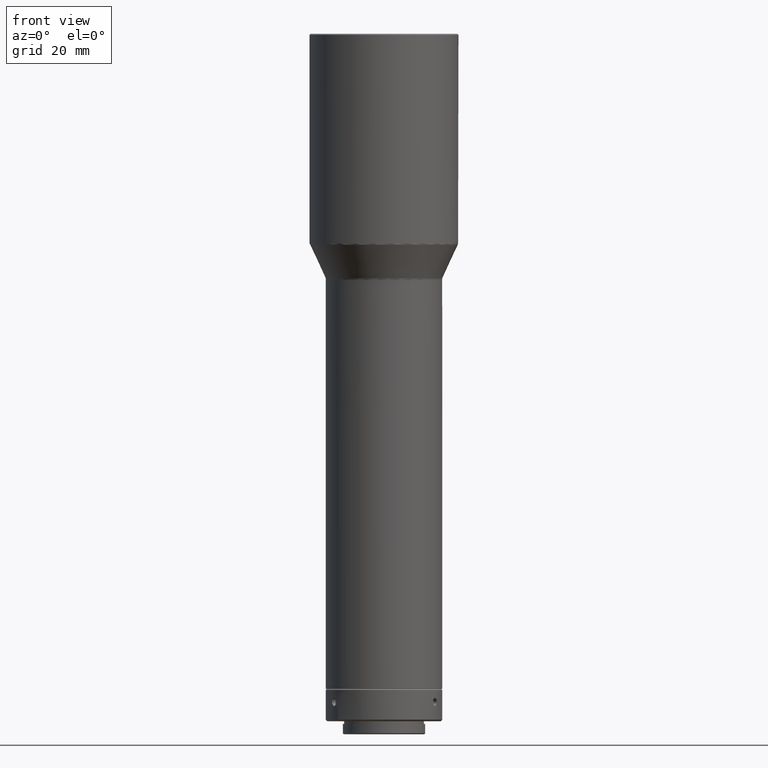
[diagram: clean part render]
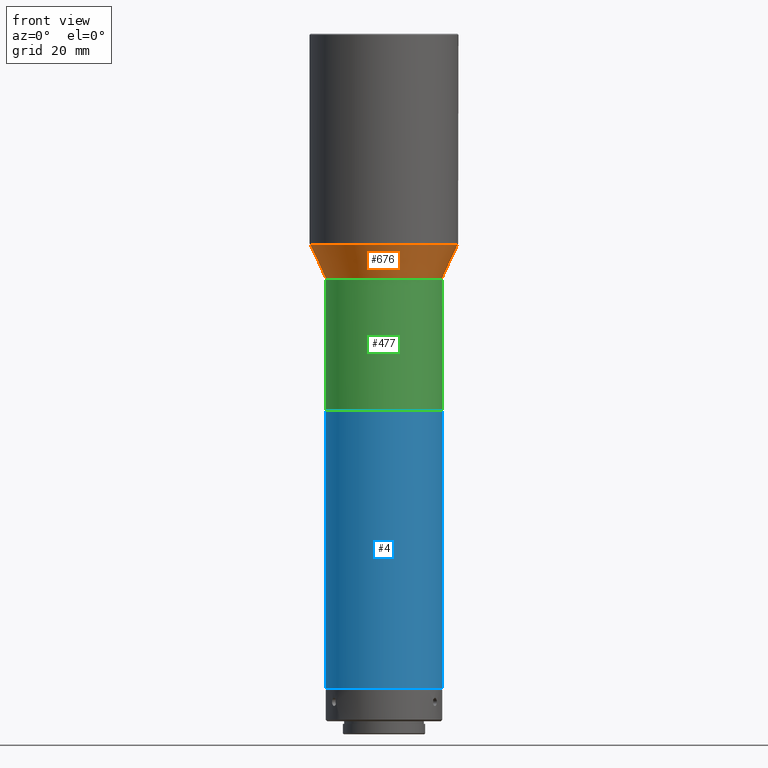
[diagram: same view with three faces highlighted in distinct colors, each labeled with its STEP entity id]
A machine part, front view with three faces highlighted in distinct colors.
Their STEP definitions:

[orange] entity #676 — the highlighted conical surface has half-angle 25 deg.
#31 = EDGE_LOOP ( 'NONE', ( #423 ) ) ;
#32 = AXIS2_PLACEMENT_3D ( 'NONE', #639, #276, #486 ) ;
#128 = CONICAL_SURFACE ( 'NONE', #339, 22.90630778703662784, 0.4363323129985753890 ) ;
#138 = DIRECTION ( 'NONE',  ( 0.000000000000000000, -1.000000000000000000, 0.000000000000000000 ) ) ;
#149 = CARTESIAN_POINT ( 'NONE',  ( -17.93697602037875427, -2.376255277071081640, -578.5216110034501753 ) ) ;
#170 = AXIS2_PLACEMENT_3D ( 'NONE', #506, #208, #360 ) ;
#208 = DIRECTION ( 'NONE',  ( -2.775557561562967156E-17, 6.938893903907538067E-18, 1.000000000000000000 ) ) ;
#211 = VERTEX_POINT ( 'NONE', #149 ) ;
#224 = CARTESIAN_POINT ( 'NONE',  ( -3.432571172034256379E-45, 2.168404344971008868E-16, -568.2009235990977913 ) ) ;
#250 = ORIENTED_EDGE ( 'NONE', *, *, #594, .T. ) ;
#276 = DIRECTION ( 'NONE',  ( 2.775557561562967156E-17, -6.938893903907538067E-18, -1.000000000000000000 ) ) ;
#339 = AXIS2_PLACEMENT_3D ( 'NONE', #224, #576, #138 ) ;
#360 = DIRECTION ( 'NONE',  ( -0.9913386283606440141, -0.1313305901914589291, 0.000000000000000000 ) ) ;
#423 = ORIENTED_EDGE ( 'NONE', *, *, #640, .T. ) ;
#432 = VERTEX_POINT ( 'NONE', #777 ) ;
#438 = CIRCLE ( 'NONE', #32, 22.90630778703662784 ) ;
#486 = DIRECTION ( 'NONE',  ( 0.9913386283606439031, 0.1313305901914589013, 0.000000000000000000 ) ) ;
#506 = CARTESIAN_POINT ( 'NONE',  ( -1.881380883459134070E-16, 4.703452208646978522E-17, -578.5216110034501753 ) ) ;
#531 = CIRCLE ( 'NONE', #170, 18.09369221296335084 ) ;
#576 = DIRECTION ( 'NONE',  ( 3.182665805937621110E-16, -2.402410245769017383E-15, 1.000000000000000000 ) ) ;
#584 = FACE_BOUND ( 'NONE', #681, .T. ) ;
#594 = EDGE_CURVE ( 'NONE', #211, #211, #531, .T. ) ;
#639 = CARTESIAN_POINT ( 'NONE',  ( -4.745947080026701828E-16, 1.186486770006636754E-16, -568.2009235990977913 ) ) ;
#640 = EDGE_CURVE ( 'NONE', #432, #432, #438, .T. ) ;
#676 = ADVANCED_FACE ( 'NONE', ( #584, #854 ), #128, .T. ) ;
#681 = EDGE_LOOP ( 'NONE', ( #250 ) ) ;
#777 = CARTESIAN_POINT ( 'NONE',  ( 22.70790774240762744, 3.008298920778730956, -568.2009235990977913 ) ) ;
#854 = FACE_OUTER_BOUND ( 'NONE', #31, .T. ) ;

[blue] entity #4 — the highlighted cylindrical surface (bore or boss wall) has radius 18 mm, axis along (0, 0, 1).
#4 = ADVANCED_FACE ( 'NONE', ( #317, #888 ), #177, .T. ) ;
#47 = EDGE_LOOP ( 'NONE', ( #498 ) ) ;
#52 = ORIENTED_EDGE ( 'NONE', *, *, #146, .T. ) ;
#55 = CARTESIAN_POINT ( 'NONE',  ( 8.897231626126479687E-16, -2.836419504252185637E-15, -705.2859819999998763 ) ) ;
#57 = DIRECTION ( 'NONE',  ( 0.000000000000000000, 0.000000000000000000, 1.000000000000000000 ) ) ;
#58 = CARTESIAN_POINT ( 'NONE',  ( 18.00000000000001421, -2.836419504252185637E-15, -705.2859819999998763 ) ) ;
#146 = EDGE_CURVE ( 'NONE', #581, #581, #379, .T. ) ;
#177 = CYLINDRICAL_SURFACE ( 'NONE', #684, 18.00000000000001421 ) ;
#265 = DIRECTION ( 'NONE',  ( 1.000000000000000000, 0.000000000000000000, 0.000000000000000000 ) ) ;
#317 = FACE_OUTER_BOUND ( 'NONE', #899, .T. ) ;
#364 = DIRECTION ( 'NONE',  ( -0.000000000000000000, -0.000000000000000000, -1.000000000000000000 ) ) ;
#379 = CIRCLE ( 'NONE', #761, 18.00000000000001421 ) ;
#457 = DIRECTION ( 'NONE',  ( 0.000000000000000000, 0.000000000000000000, 1.000000000000000000 ) ) ;
#466 = VERTEX_POINT ( 'NONE', #869 ) ;
#473 = AXIS2_PLACEMENT_3D ( 'NONE', #560, #364, #789 ) ;
#498 = ORIENTED_EDGE ( 'NONE', *, *, #919, .T. ) ;
#544 = CARTESIAN_POINT ( 'NONE',  ( 8.897231626126479687E-16, -2.836419504252185637E-15, -712.9859819999999218 ) ) ;
#560 = CARTESIAN_POINT ( 'NONE',  ( 8.897231626126479687E-16, -2.836419504252185637E-15, -619.3559819999999263 ) ) ;
#581 = VERTEX_POINT ( 'NONE', #58 ) ;
#684 = AXIS2_PLACEMENT_3D ( 'NONE', #544, #457, #265 ) ;
#761 = AXIS2_PLACEMENT_3D ( 'NONE', #55, #57, #917 ) ;
#789 = DIRECTION ( 'NONE',  ( 1.000000000000000000, 0.000000000000000000, 0.000000000000000000 ) ) ;
#838 = CIRCLE ( 'NONE', #473, 18.00000000000001421 ) ;
#869 = CARTESIAN_POINT ( 'NONE',  ( 18.00000000000001421, -2.836419504252185637E-15, -619.3559819999999263 ) ) ;
#888 = FACE_OUTER_BOUND ( 'NONE', #47, .T. ) ;
#899 = EDGE_LOOP ( 'NONE', ( #52 ) ) ;
#917 = DIRECTION ( 'NONE',  ( 1.000000000000000000, 0.000000000000000000, 0.000000000000000000 ) ) ;
#919 = EDGE_CURVE ( 'NONE', #466, #466, #838, .T. ) ;

[green] entity #477 — the highlighted cylindrical surface (bore or boss wall) has radius 18 mm, axis along (0, -0, -1).
#16 = CARTESIAN_POINT ( 'NONE',  ( -1.764080752255982371E-16, 4.410201880640029266E-17, -578.9442292651909838 ) ) ;
#18 = ORIENTED_EDGE ( 'NONE', *, *, #175, .T. ) ;
#61 = AXIS2_PLACEMENT_3D ( 'NONE', #16, #165, #304 ) ;
#103 = DIRECTION ( 'NONE',  ( -1.000000000000000000, 0.000000000000000000, 0.000000000000000000 ) ) ;
#132 = VERTEX_POINT ( 'NONE', #565 ) ;
#165 = DIRECTION ( 'NONE',  ( 2.775557561562967156E-17, -6.938893903907538067E-18, -1.000000000000000000 ) ) ;
#174 = DIRECTION ( 'NONE',  ( -1.000000000000000000, 0.000000000000000000, 0.000000000000000000 ) ) ;
#175 = EDGE_CURVE ( 'NONE', #345, #345, #495, .T. ) ;
#223 = ORIENTED_EDGE ( 'NONE', *, *, #381, .F. ) ;
#237 = CARTESIAN_POINT ( 'NONE',  ( 9.447997939560344219E-16, -2.361999484890127470E-16, -619.3400000000000318 ) ) ;
#244 = AXIS2_PLACEMENT_3D ( 'NONE', #756, #871, #103 ) ;
#275 = AXIS2_PLACEMENT_3D ( 'NONE', #237, #391, #174 ) ;
#304 = DIRECTION ( 'NONE',  ( -1.000000000000000000, 0.000000000000000000, 0.000000000000000000 ) ) ;
#345 = VERTEX_POINT ( 'NONE', #497 ) ;
#381 = EDGE_CURVE ( 'NONE', #132, #132, #890, .T. ) ;
#391 = DIRECTION ( 'NONE',  ( 2.775557561562967156E-17, -6.938893903907538067E-18, -1.000000000000000000 ) ) ;
#429 = EDGE_LOOP ( 'NONE', ( #223 ) ) ;
#454 = CYLINDRICAL_SURFACE ( 'NONE', #244, 18.00000000000000000 ) ;
#477 = ADVANCED_FACE ( 'NONE', ( #741, #613 ), #454, .T. ) ;
#495 = CIRCLE ( 'NONE', #61, 18.00000000000000000 ) ;
#497 = CARTESIAN_POINT ( 'NONE',  ( -18.00000000000000000, 4.410201880640029266E-17, -578.9442292651909838 ) ) ;
#565 = CARTESIAN_POINT ( 'NONE',  ( -18.00000000000000000, -2.361999484890127470E-16, -619.3400000000000318 ) ) ;
#613 = FACE_OUTER_BOUND ( 'NONE', #429, .T. ) ;
#723 = EDGE_LOOP ( 'NONE', ( #18 ) ) ;
#741 = FACE_OUTER_BOUND ( 'NONE', #723, .T. ) ;
#756 = CARTESIAN_POINT ( 'NONE',  ( 1.387778780781499910E-16, -3.469446951953812020E-17, -590.3000000000000682 ) ) ;
#871 = DIRECTION ( 'NONE',  ( 2.775557561562967156E-17, -6.938893903907538067E-18, -1.000000000000000000 ) ) ;
#890 = CIRCLE ( 'NONE', #275, 18.00000000000000000 ) ;